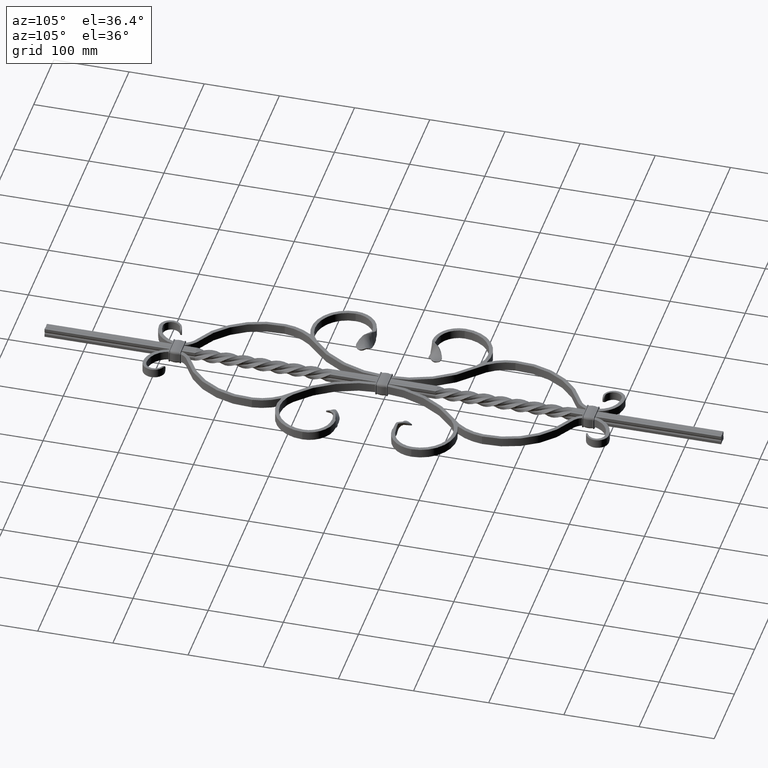
[diagram: clean part render]
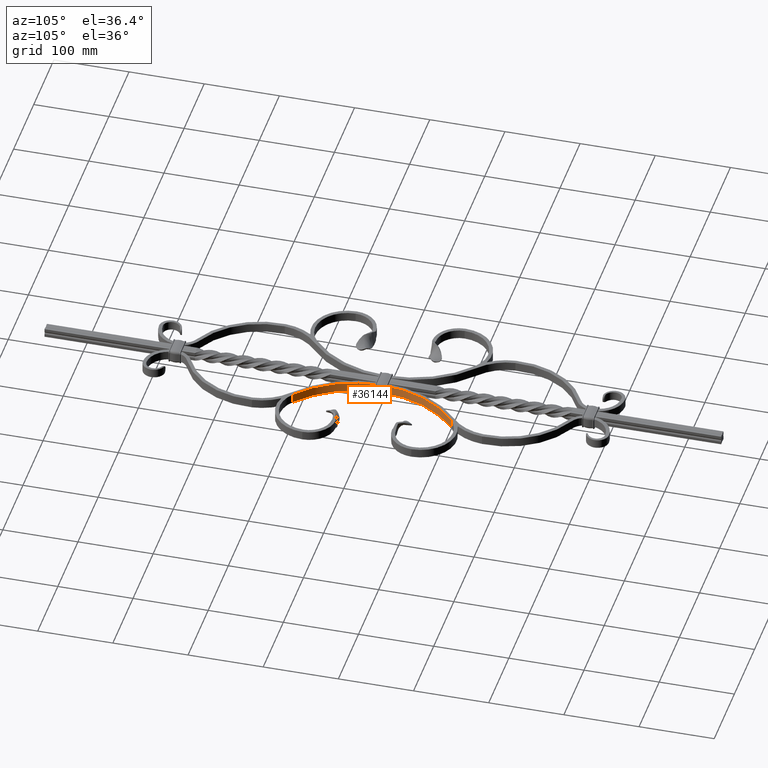
[diagram: same view with one face highlighted and labeled with its STEP entity id]
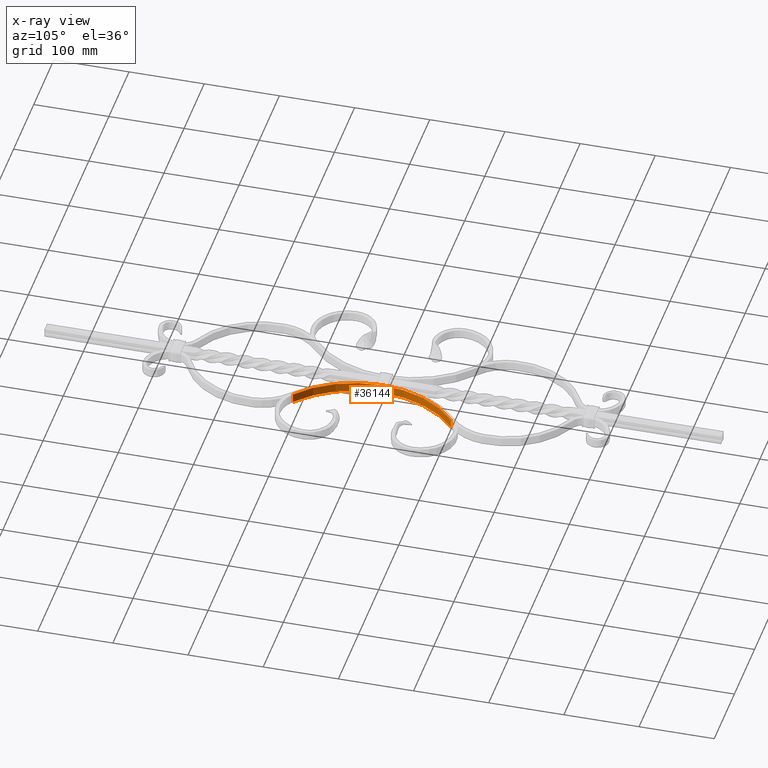
[diagram: x-ray of the same camera — body ghosted, the highlighted face saturated]
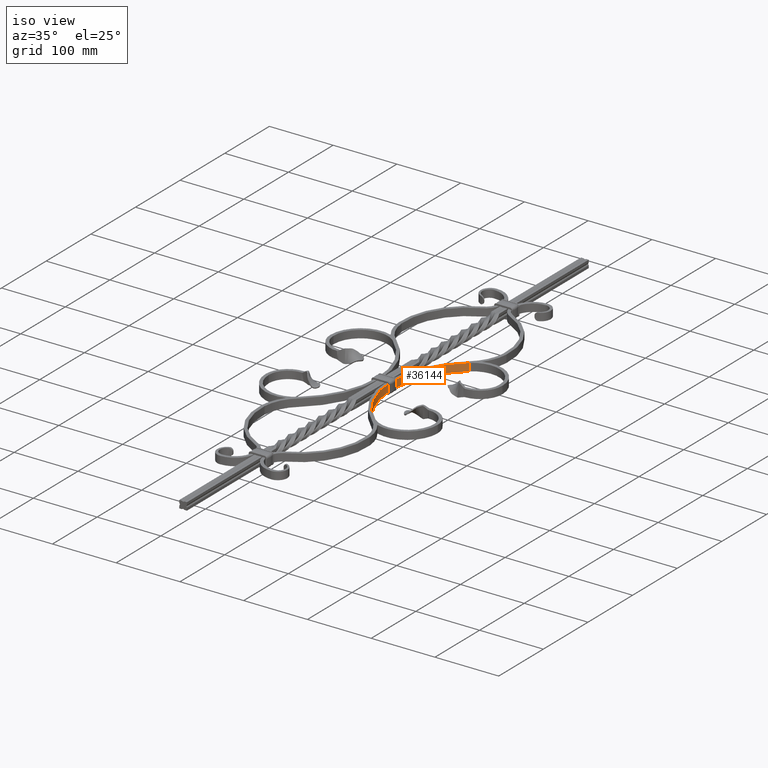
[diagram: same view with one face highlighted and labeled with its STEP entity id]
A machine part, auxiliary view. The second image highlights one B-rep face of the part: STEP entity #36144.
The next image is the same camera in x-ray: the body ghosted, the highlighted face saturated — about 0% of this face is hidden behind the body in this view.
A second angle (iso view) of the same face is appended — the face is thin or edge-on in the first view.
In plain terms, the highlighted cylindrical surface (partial cylindrical patch) has radius 136.798 mm, axis along (0, 0, 1).
Its self-contained STEP definition (entity closure, byte-faithful):
#975 = ORIENTED_EDGE ( 'NONE', *, *, #20250, .F. ) ;
#1318 = CARTESIAN_POINT ( 'NONE',  ( 60.32379057318851068, 105.1757347459868157, -5.999999999999999112 ) ) ;
#2954 = EDGE_CURVE ( 'NONE', #38104, #15356, #9940, .T. ) ;
#6366 = VECTOR ( 'NONE', #33761, 1000.000000000000000 ) ;
#6575 = CARTESIAN_POINT ( 'NONE',  ( 147.7978081062374258, -2.898016718037498487E-14, 0.000000000000000000 ) ) ;
#7906 = CARTESIAN_POINT ( 'NONE',  ( 60.32379057318865279, -105.1757347459866025, -5.999999999999999112 ) ) ;
#8773 = DIRECTION ( 'NONE',  ( -0.000000000000000000, -0.000000000000000000, -1.000000000000000000 ) ) ;
#9940 = LINE ( 'NONE', #7906, #6366 ) ;
#10318 = CARTESIAN_POINT ( 'NONE',  ( 60.32379057318861015, -105.1757347459866594, 6.000000000000000000 ) ) ;
#10528 = AXIS2_PLACEMENT_3D ( 'NONE', #6575, #13130, #16555 ) ;
#11448 = DIRECTION ( 'NONE',  ( 0.000000000000000000, 0.000000000000000000, 1.000000000000000000 ) ) ;
#11721 = ORIENTED_EDGE ( 'NONE', *, *, #2954, .F. ) ;
#12330 = DIRECTION ( 'NONE',  ( -0.6394402218073277355, -0.7688408175526294519, 0.000000000000000000 ) ) ;
#13130 = DIRECTION ( 'NONE',  ( 0.000000000000000000, 0.000000000000000000, 1.000000000000000000 ) ) ;
#14064 = VECTOR ( 'NONE', #11448, 1000.000000000000000 ) ;
#14134 = DIRECTION ( 'NONE',  ( -0.000000000000000000, -0.000000000000000000, -1.000000000000000000 ) ) ;
#15356 = VERTEX_POINT ( 'NONE', #10318 ) ;
#15847 = ORIENTED_EDGE ( 'NONE', *, *, #17309, .T. ) ;
#16555 = DIRECTION ( 'NONE',  ( -1.000000000000000000, 0.000000000000000000, 0.000000000000000000 ) ) ;
#17026 = CIRCLE ( 'NONE', #30237, 136.7978030625138501 ) ;
#17278 = EDGE_CURVE ( 'NONE', #20482, #29363, #32363, .T. ) ;
#17309 = EDGE_CURVE ( 'NONE', #38104, #20482, #39506, .T. ) ;
#17682 = AXIS2_PLACEMENT_3D ( 'NONE', #30890, #14134, #34168 ) ;
#18844 = CARTESIAN_POINT ( 'NONE',  ( 60.32379057318865279, 105.1757347459867589, 6.000000000000000000 ) ) ;
#20250 = EDGE_CURVE ( 'NONE', #15356, #29363, #17026, .T. ) ;
#20482 = VERTEX_POINT ( 'NONE', #22801 ) ;
#22801 = CARTESIAN_POINT ( 'NONE',  ( 60.32379057318851068, 105.1757347459867731, -5.999999999999999112 ) ) ;
#24770 = CYLINDRICAL_SURFACE ( 'NONE', #10528, 136.7978030625138501 ) ;
#25305 = EDGE_LOOP ( 'NONE', ( #975, #11721, #15847, #26019 ) ) ;
#26019 = ORIENTED_EDGE ( 'NONE', *, *, #17278, .T. ) ;
#28652 = CARTESIAN_POINT ( 'NONE',  ( 147.7978081062374258, -2.898016718037498487E-14, 6.000000000000000000 ) ) ;
#29363 = VERTEX_POINT ( 'NONE', #18844 ) ;
#30237 = AXIS2_PLACEMENT_3D ( 'NONE', #28652, #8773, #12330 ) ;
#30890 = CARTESIAN_POINT ( 'NONE',  ( 147.7978081062374258, -2.898016718037498487E-14, -5.999999999999999112 ) ) ;
#31328 = FACE_OUTER_BOUND ( 'NONE', #25305, .T. ) ;
#32326 = CARTESIAN_POINT ( 'NONE',  ( 60.32379057318865279, -105.1757347459867589, -6.000000000000000000 ) ) ;
#32363 = LINE ( 'NONE', #1318, #14064 ) ;
#33761 = DIRECTION ( 'NONE',  ( 0.000000000000000000, 0.000000000000000000, 1.000000000000000000 ) ) ;
#34168 = DIRECTION ( 'NONE',  ( -0.6394402218073277355, -0.7688408175526294519, 0.000000000000000000 ) ) ;
#36144 = ADVANCED_FACE ( 'NONE', ( #31328 ), #24770, .F. ) ;
#38104 = VERTEX_POINT ( 'NONE', #32326 ) ;
#39506 = CIRCLE ( 'NONE', #17682, 136.7978030625138501 ) ;